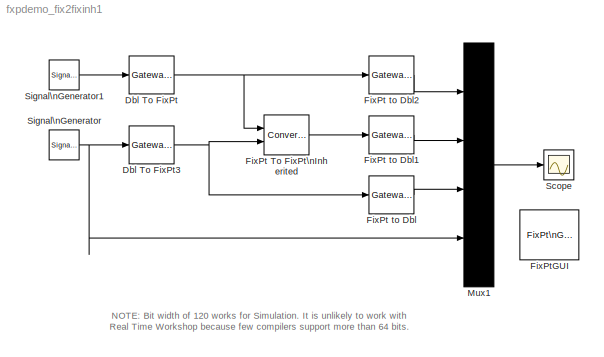
MODEL fxpdemo_fix2fixinh1
KIND model
CONFIG AbsTol = 1e-6
CONFIG FixedStep = 0.001
CONFIG MaxStep = auto
CONFIG MinStep = auto
CONFIG RelTol = 1e-3
CONFIG Solver = FixedStepDiscrete
CONFIG SolverMode = SingleTasking
CONFIG StartTime = 0.0
CONFIG StopTime = 0.9985
BLOCK [Reference] Dbl To FixPt  REF=fixpt_lib_4/Data Type/Gateway In  (lib defined in mdl_ef9dacb0d1df)
  DoSatur = on
  InRealWorld = Real World Value
  LockScale = off
  OutDataType = ufix( 4 )
  OutScaling = 2^(-3)
  OutputDataTypeScalingMode = Specify via dialog
  Ports = [1, 1]
  RndMeth = Nearest
  SourceBlock = fixpt_lib_4/Data Type/Gateway In
  SourceType = Fixed-Point Gateway In
BLOCK [Reference] Dbl To FixPt3  REF=fixpt_lib_4/Data Type/Gateway In  (lib defined in mdl_ef9dacb0d1df)
  DoSatur = on
  InRealWorld = Real World Value
  LockScale = off
  OutDataType = sfix(120)
  OutScaling = 2^(-116)
  OutputDataTypeScalingMode = Specify via dialog
  Ports = [1, 1]
  RndMeth = Floor
  SourceBlock = fixpt_lib_4/Data Type/Gateway In
  SourceType = Fixed-Point Gateway In
BLOCK [Reference] FixPt To FixPt\nInherited  REF=fixpt_lib_4/Data Type/Conversion\nInherited  (lib defined in mdl_ef9dacb0d1df)
  ConvertRealWorld = Real World Value
  DoSatur = on
  Ports = [2, 1]
  RndMeth = Nearest
  SourceBlock = fixpt_lib_4/Data Type/Conversion\nInherited
  SourceType = Fixed-Point to Fixed-Point Inherited Conversion
BLOCK [Reference] FixPt to Dbl  REF=fixpt_lib_4/Data Type/Gateway Out  (lib defined in mdl_ef9dacb0d1df)
  DoSatur = off
  OutBuiltInType = double
  OutRealWorld = Real World Value
  Ports = [1, 1]
  RndMeth = Floor
  SourceBlock = fixpt_lib_4/Data Type/Gateway Out
  SourceType = Fixed-Point Gateway Out
BLOCK [Reference] FixPt to Dbl1  REF=fixpt_lib_4/Data Type/Gateway Out  (lib defined in mdl_ef9dacb0d1df)
  DoSatur = off
  OutBuiltInType = double
  OutRealWorld = Real World Value
  Ports = [1, 1]
  RndMeth = Floor
  SourceBlock = fixpt_lib_4/Data Type/Gateway Out
  SourceType = Fixed-Point Gateway Out
BLOCK [Reference] FixPt to Dbl2  REF=fixpt_lib_4/Data Type/Gateway Out  (lib defined in mdl_ef9dacb0d1df)
  DoSatur = off
  OutBuiltInType = double
  OutRealWorld = Real World Value
  Ports = [1, 1]
  RndMeth = Floor
  SourceBlock = fixpt_lib_4/Data Type/Gateway Out
  SourceType = Fixed-Point Gateway Out
BLOCK [Reference] FixPtGUI  REF=fixpt_lib_3p1/FixPt\nGUI
  Ports = []
  SourceBlock = fixpt_lib_3p1/FixPt\nGUI
  SourceType = Fixed-Point GUI
BLOCK [Mux] Mux1
  Ports = [4, 1]
BLOCK [Scope] Scope
  DataFormat = StructureWithTime
  NumInputPorts = 1
  Ports = [1]
  SaveToWorkspace = on
  TickLabels = on
BLOCK [SignalGenerator] Signal\nGenerator
  Amplitude = 5
  WaveForm = sawtooth
BLOCK [SignalGenerator] Signal\nGenerator1
  Frequency = 10
ANNOTATION (root): NOTE: Bit width of 120 works for Simulation. It is unlikely to work with\nReal Time Workshop because few compilers support more than 64 bits.
NET Dbl To FixPt3:1 -> FixPt To FixPt\nInherited:2, FixPt to Dbl:1
NET Dbl To FixPt:1 -> FixPt To FixPt\nInherited:1, FixPt to Dbl2:1
LINE FixPt To FixPt\nInherited:1 -> FixPt to Dbl1:1
LINE FixPt to Dbl1:1 -> Mux1:2
LINE FixPt to Dbl2:1 -> Mux1:1
LINE FixPt to Dbl:1 -> Mux1:3
LINE Mux1:1 -> Scope:1
LINE Signal\nGenerator1:1 -> Dbl To FixPt:1
NET Signal\nGenerator:1 -> Dbl To FixPt3:1, Mux1:4
note: NET lines group one-source signal fan-out (src -> all destinations, sorted); 1:1 wires keep LINE
